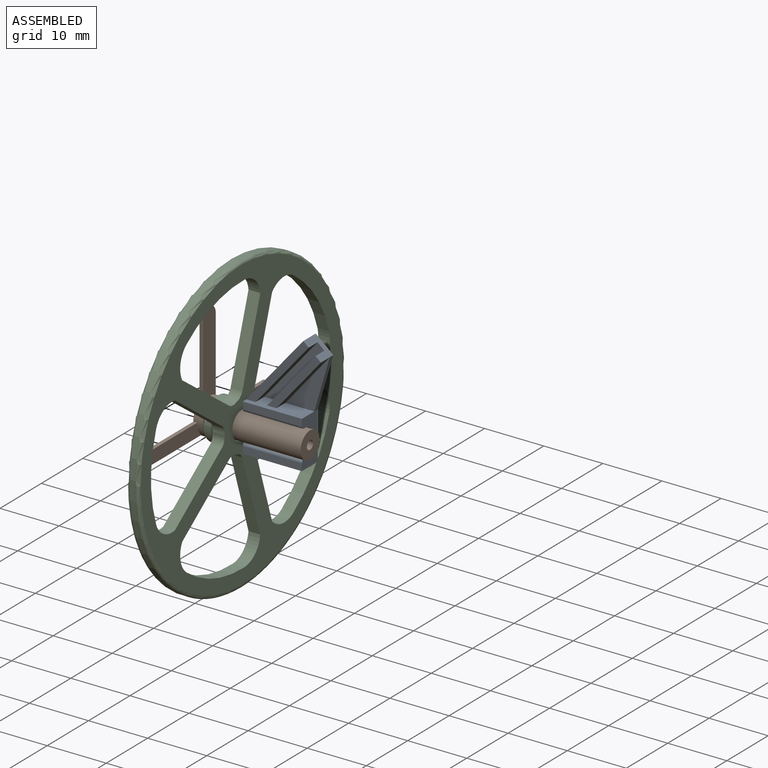
[diagram: assembled view]
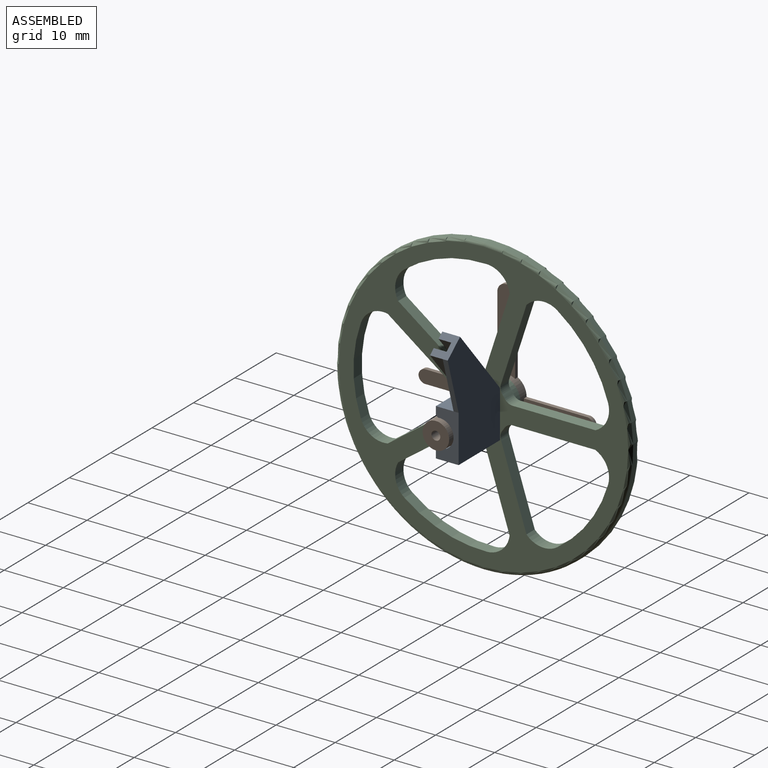
[diagram: assembled view, second angle]
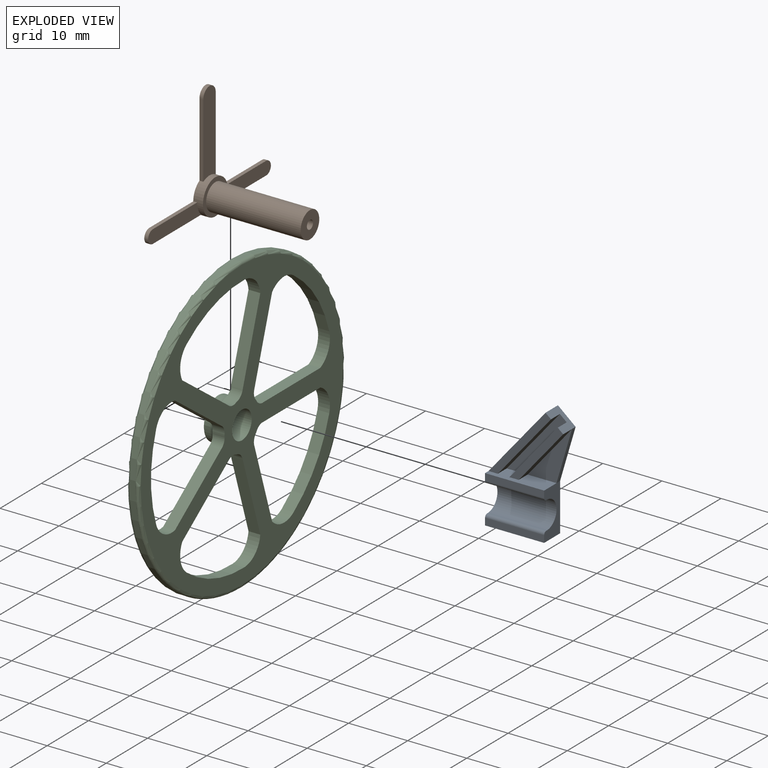
[diagram: exploded view]
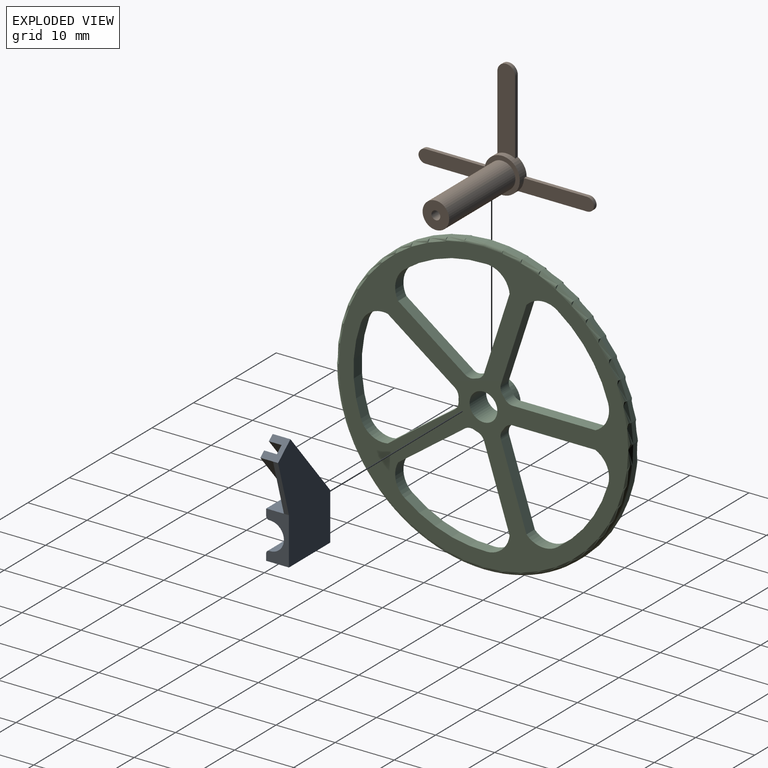
[diagram: exploded view, second angle]
ASSEMBLY  parts=3 mates=2
PART A: 20 faces, bbox 12.6x19.5x3.9 mm
  f0: plane 10x1.15mm, normal (0,0,1), area 11.5mm2, adj f3,f7,f15,f19
  f1: plane 10.72x10.14mm, normal (0,0,1), area 20mm2, adj f5,f10,f13,f15
  f2: plane 8.98x7.54mm, normal (0,0,1), area 22.1mm2, adj f4,f11,f15
  f3: plane 8x3.85mm, normal (1,0,0), area 19mm2, adj f0,f4,f8,f9,f15,f16,f17,f18
  f4: plane 8.98x2.63mm, normal (0.96,-0.28,0), area 8mm2, adj f2,f3,f5,f9
  f5: plane 3x2.99mm, normal (0.64,0.77,0), area 8.5mm2, adj f1,f4,f6,f9,f10,f11,f12,f13
  f6: plane 11.49x9.64mm, normal (-0.77,0.64,0), area 45mm2, adj f5,f7,f9,f14
  f7: plane 8x3.85mm, normal (-1,0,0), area 19mm2, adj f0,f6,f8,f9,f15,f16,f17,f18
  f8: plane 10x3.85mm, normal (0,-1,0), area 38.5mm2, adj f3,f7,f9,f16
  f9: plane 19.49x12.63mm, normal (0,0,-1), area 154.2mm2, adj f3,f4,f5,f6,f7,f8
  f10: plane 9.76x8.19mm, normal (-0.77,0.64,0), area 27.4mm2, adj f1,f5,f12,f15
  f11: plane 8.98x7.54mm, normal (0.77,-0.64,0), area 25.2mm2, adj f2,f5,f12,f15
  f12: plane 9.76x9.1mm, normal (0,0,1), area 14.7mm2, adj f5,f10,f11,f15
  f13: plane 10.72x8.99mm, normal (0.77,-0.64,0), area 30.1mm2, adj f1,f5,f14,f15
  f14: plane 11.49x10.56mm, normal (0,0,1), area 17.4mm2, adj f5,f6,f13,f15
  f15: plane 10x3mm, normal (0,1,0), area 23.3mm2, adj f0,f1,f2,f3,f7,f10,f11,f12
  f16: plane 10x1.15mm, normal (0,0,1), area 11.5mm2, adj f3,f7,f8,f18
  f17: cylinder r=2.35mm len=10mm, axis (-1,0,0), area 76.3mm2, adj f3,f7,f18,f19
  f18: cylinder r=0.5mm len=10mm, axis (-1,0,0), area 8.1mm2, adj f3,f7,f16,f17
  f19: cylinder r=0.5mm len=10mm, axis (-1,0,0), area 8.1mm2, adj f0,f3,f7,f17
PART B: 21 faces, bbox 29.7x19.7x17.7 mm
  f0: cylinder r=0.75mm len=17mm, axis (0,0,-1), area 80.1mm2, adj f2,f3
  f1: cylinder r=2.25mm len=16mm, axis (0,0,-1), area 226.2mm2, adj f2,f4
  f2: plane 4.5x4.5mm, normal (0,0,1), area 14.1mm2, adj f0,f1
  f3: plane 1.5x1.5mm, normal (0,0,1), area 1.8mm2, adj f0
  f4: plane 6x6mm, normal (0,0,1), area 12.4mm2, adj f1,f12
  f5: cylinder r=1.5mm len=3mm, axis (0,0,1), area 3.1mm2, adj f6,f7,f8,f13
  f6: plane 12.58x0.65mm, normal (1,0,0), area 8.2mm2, adj f5,f7,f12,f13
  f7: plane 14.08x3mm, normal (0,0,1), area 40.5mm2, adj f5,f6,f8,f12
  f8: plane 12.58x0.65mm, normal (-1,0,0), area 8.2mm2, adj f5,f7,f12,f13
  f9: cylinder r=1.15mm len=1.15mm, axis (0,0,1), area 1.1mm2, adj f10,f13,f14,f15
  f10: cylinder r=1.2mm len=1.2mm, axis (0,0,1), area 1.2mm2, adj f9,f11,f13,f14
  f11: plane 10.65x0.65mm, normal (0,1,0), area 6.9mm2, adj f10,f12,f13,f14
  f12: cylinder r=3mm len=6mm, axis (0,0,1), area 25.8mm2, adj f4,f6,f7,f8,f11,f13,f14,f15
  f13: plane 29.69x19.68mm, normal (0,0,-1), area 122.3mm2, adj f5,f6,f8,f9,f10,f11,f12,f15
  f14: plane 12.86x2.25mm, normal (0,0,1), area 26.8mm2, adj f9,f10,f11,f12,f15
  f15: plane 11.71x0.65mm, normal (0,-1,0), area 7.6mm2, adj f9,f12,f13,f14
  f16: plane 10.65x0.65mm, normal (0,1,0), area 6.9mm2, adj f12,f13,f17,f20
  f17: cylinder r=1.2mm len=1.2mm, axis (0,0,1), area 1.2mm2, adj f13,f16,f18,f20
  f18: cylinder r=1.15mm len=1.15mm, axis (0,0,1), area 1.1mm2, adj f13,f17,f19,f20
  f19: plane 11.71x0.65mm, normal (0,-1,0), area 7.6mm2, adj f12,f13,f18,f20
  f20: plane 12.86x2.25mm, normal (0,0,1), area 26.8mm2, adj f12,f16,f17,f18,f19
PART C: 49 faces, bbox 54.1x54.1x4 mm
  f0: plane 13.11x4.26mm, normal (-0.31,-0.95,0), area 27.6mm2, adj f1,f36,f42,f43
  f1: cylinder r=1.7mm len=2.04mm, axis (0,0,-1), area 3.5mm2, adj f0,f2,f42,f43,f46
  f2: cylinder r=4.22mm len=2.04mm, axis (0,0,-1), area 1.5mm2, adj f1,f3,f43,f46
  f3: cylinder r=1.7mm len=2.04mm, axis (0,0,-1), area 3.5mm2, adj f2,f4,f42,f43,f46
  f4: plane 11.15x8.1mm, normal (-0.81,0.59,0), area 27.6mm2, adj f3,f5,f42,f43
  f5: cylinder r=4mm len=5.12mm, axis (0,0,-1), area 11.4mm2, adj f4,f6,f42,f43
  f6: cylinder r=22mm len=13.94mm, axis (0,0,-1), area 29.9mm2, adj f5,f36,f42,f43
  f7: plane 11.15x8.1mm, normal (0.81,-0.59,0), area 27.6mm2, adj f8,f37,f42,f43
  f8: cylinder r=1.7mm len=2.04mm, axis (0,0,-1), area 3.5mm2, adj f7,f9,f42,f43,f46
  f9: cylinder r=4.22mm len=2.04mm, axis (0,0,-1), area 1.5mm2, adj f8,f10,f43,f46
  f10: cylinder r=1.7mm len=2.04mm, axis (0,0,-1), area 3.5mm2, adj f9,f11,f42,f43,f46
  f11: plane 11.15x8.1mm, normal (-0.81,-0.59,0), area 27.6mm2, adj f10,f12,f42,f43
  f12: cylinder r=4mm len=4.54mm, axis (0,0,-1), area 11.4mm2, adj f11,f13,f42,f43
  f13: cylinder r=22mm len=14.66mm, axis (0,0,-1), area 29.9mm2, adj f12,f37,f42,f43
  f14: plane 11.15x8.1mm, normal (0.81,0.59,0), area 27.6mm2, adj f15,f38,f42,f43
  f15: cylinder r=1.7mm len=2.04mm, axis (0,0,-1), area 3.5mm2, adj f14,f16,f42,f43,f46
  f16: cylinder r=4.22mm len=2.04mm, axis (0,0,-1), area 1.5mm2, adj f15,f17,f43,f46
  f17: cylinder r=1.7mm len=2.04mm, axis (0,0,-1), area 3.5mm2, adj f16,f18,f42,f43,f46
  f18: plane 13.11x4.26mm, normal (0.31,-0.95,0), area 27.6mm2, adj f17,f19,f42,f43
  f19: cylinder r=4mm len=3.87mm, axis (0,0,-1), area 11.4mm2, adj f18,f20,f42,f43
  f20: cylinder r=22mm len=13.94mm, axis (0,0,-1), area 29.9mm2, adj f19,f38,f42,f43
  f21: plane 13.11x4.26mm, normal (-0.31,0.95,0), area 27.6mm2, adj f22,f39,f42,f43
  f22: cylinder r=1.7mm len=2.04mm, axis (0,0,-1), area 3.5mm2, adj f21,f23,f42,f43,f46
  f23: cylinder r=4.22mm len=2.04mm, axis (0,0,-1), area 1.5mm2, adj f22,f24,f43,f46
  f24: cylinder r=1.7mm len=2.04mm, axis (0,0,-1), area 3.5mm2, adj f23,f25,f42,f43,f46
  f25: plane 13.78x2mm, normal (1,0,0), area 27.6mm2, adj f24,f26,f42,f43
  f26: cylinder r=4mm len=4.76mm, axis (0,0,-1), area 11.4mm2, adj f25,f27,f42,f43
  f27: cylinder r=22mm len=11.86mm, axis (0,0,-1), area 29.9mm2, adj f26,f39,f42,f43
  f28: cylinder r=4mm len=4.76mm, axis (0,0,-1), area 11.4mm2, adj f29,f40,f42,f43
  f29: plane 13.78x2mm, normal (-1,0,0), area 27.6mm2, adj f28,f30,f42,f43
  f30: cylinder r=1.7mm len=2.04mm, axis (0,0,-1), area 3.5mm2, adj f29,f31,f42,f43,f46
  f31: cylinder r=4.22mm len=2.04mm, axis (0,0,-1), area 1.5mm2, adj f30,f32,f43,f46
  f32: cylinder r=1.7mm len=2.04mm, axis (0,0,-1), area 3.5mm2, adj f31,f33,f42,f43,f46
  f33: plane 13.11x4.26mm, normal (0.31,0.95,0), area 27.6mm2, adj f32,f34,f42,f43
  f34: cylinder r=4mm len=5.2mm, axis (0,0,-1), area 11.4mm2, adj f33,f40,f42,f43
  f35: cylinder r=2.35mm len=4.7mm, axis (0,0,-1), area 59.1mm2, adj f43,f45
  f36: cylinder r=4mm len=3.87mm, axis (0,0,-1), area 11.4mm2, adj f0,f6,f42,f43
  f37: cylinder r=4mm len=4.54mm, axis (0,0,-1), area 11.4mm2, adj f7,f13,f42,f43
  f38: cylinder r=4mm len=5.12mm, axis (0,0,-1), area 11.4mm2, adj f14,f20,f42,f43
  f39: cylinder r=4mm len=5.2mm, axis (0,0,-1), area 11.4mm2, adj f21,f27,f42,f43
  f40: cylinder r=22mm len=11.86mm, axis (0,0,-1), area 29.9mm2, adj f28,f34,f42,f43
  f41: cylinder r=25mm len=50mm, axis (0,0,-1), area 157.1mm2, adj f47,f48
  f42: plane 49x49mm, normal (0,0,1), area 670.3mm2, adj f0,f1,f3,f4,f5,f6,f7,f8
  f43: plane 49x49mm, normal (0,0,-1), area 714.3mm2, adj f0,f1,f2,f3,f4,f5,f6,f7
  f44: cylinder r=3.5mm len=7mm, axis (0,0,-1), area 22mm2, adj f45,f46
  f45: plane 7x7mm, normal (0,0,1), area 21.1mm2, adj f35,f44
  f46: torus R=4.5mm, axis (0,0,1), area 35.8mm2, adj f1,f2,f3,f8,f9,f10,f15,f16
  f47: torus R=24.5mm, axis (0,0,1), area 122.5mm2, adj f41,f43
  f48: torus R=24.5mm, axis (0,0,1), area 122.5mm2, adj f41,f42
PLACE A rot(axis=(1,0,0),90deg) t=(-87.37,-0.98,-2.43)mm
PLACE B rot(axis=(0.58,0.58,0.58),120deg) t=(-61.61,36.59,1.57)mm
PLACE C rot(axis=(0,-1,0),90deg) t=(-56.11,-4.18,1.57)mm
MATE slider A.f17 <-> B.f0  axis (-1,0,0) through (-45.53,-4.18,1.57)mm
MATE revolute C.f35 <-> B.f0  axis (-1,0,0) through (-60.11,-4.18,1.57)mm
